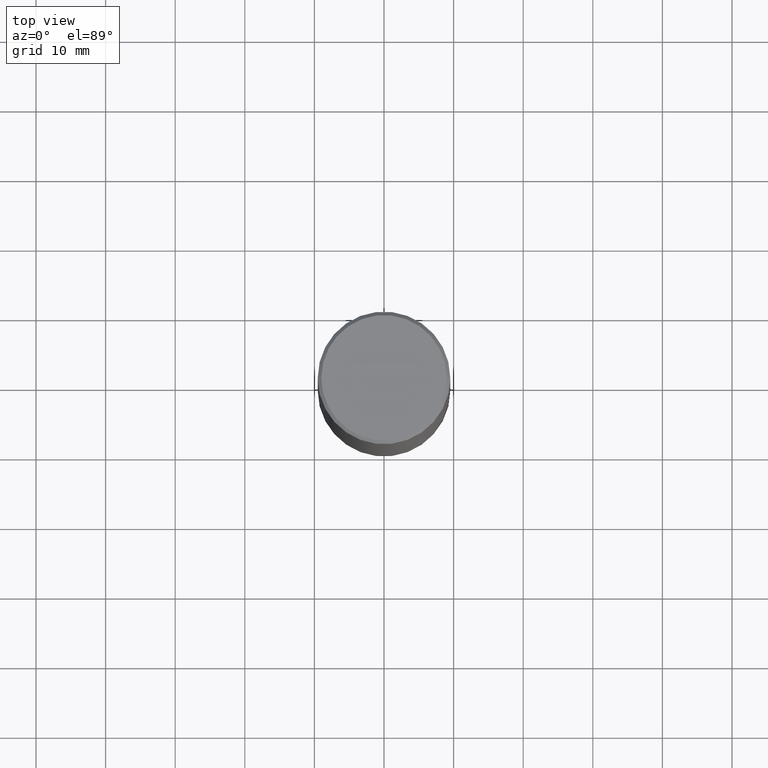
[diagram: clean part render]
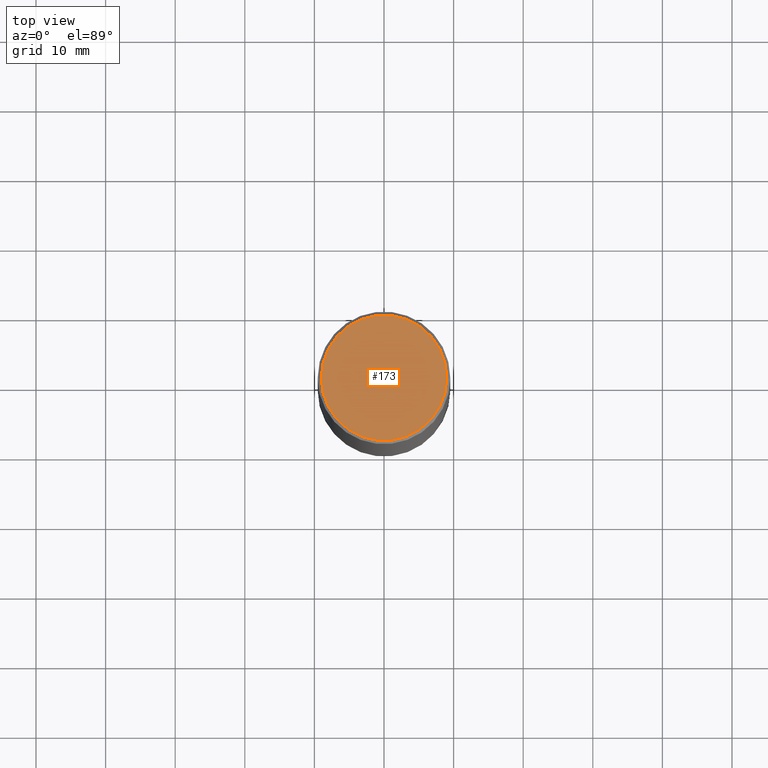
[diagram: same view with one face highlighted and labeled with its STEP entity id]
A machine part, top view. The second image highlights one B-rep face of the part: STEP entity #173.
In plain terms, the highlighted planar face has unit normal (0, -0, -1).
Its self-contained STEP definition (entity closure, byte-faithful):
#49 = CARTESIAN_POINT ( 'NONE',  ( 2.478951750578621842E-15, 0.3549999999999996492, -1.237341619044265047E-15 ) ) ;
#86 = DIRECTION ( 'NONE',  ( 2.438088387897960049E-29, -3.491481338843145188E-15, -1.000000000000000000 ) ) ;
#117 = CARTESIAN_POINT ( 'NONE',  ( -1.043851414335219820E-46, 1.490343170380447200E-32, 4.268512490100411279E-18 ) ) ;
#122 = DIRECTION ( 'NONE',  ( -2.445468806185136597E-29, 3.491481338843145583E-15, 1.000000000000000000 ) ) ;
#124 = CARTESIAN_POINT ( 'NONE',  ( -1.043851414335219820E-46, 1.490343170380447200E-32, 4.268512490100411279E-18 ) ) ;
#148 = CIRCLE ( 'NONE', #309, 0.3549999999999996492 ) ;
#163 = EDGE_LOOP ( 'NONE', ( #225, #389 ) ) ;
#173 = ADVANCED_FACE ( 'NONE', ( #324 ), #327, .F. ) ;
#175 = DIRECTION ( 'NONE',  ( -1.000000000000000000, 6.982962677686265922E-15, -4.876176775795935793E-29 ) ) ;
#225 = ORIENTED_EDGE ( 'NONE', *, *, #353, .T. ) ;
#237 = AXIS2_PLACEMENT_3D ( 'NONE', #49, #86, #175 ) ;
#242 = DIRECTION ( 'NONE',  ( -2.445468806185136597E-29, 3.491481338843145583E-15, 1.000000000000000000 ) ) ;
#245 = DIRECTION ( 'NONE',  ( 1.000000000000000000, -6.982962677686265922E-15, 4.876231632511992667E-29 ) ) ;
#247 = CIRCLE ( 'NONE', #299, 0.3549999999999996492 ) ;
#248 = VERTEX_POINT ( 'NONE', #379 ) ;
#299 = AXIS2_PLACEMENT_3D ( 'NONE', #124, #122, #245 ) ;
#309 = AXIS2_PLACEMENT_3D ( 'NONE', #117, #242, #337 ) ;
#324 = FACE_OUTER_BOUND ( 'NONE', #163, .T. ) ;
#327 = PLANE ( 'NONE',  #237 ) ;
#333 = CARTESIAN_POINT ( 'NONE',  ( 0.3549999999999996492, -2.538996582575038287E-15, 4.268512490117958041E-18 ) ) ;
#337 = DIRECTION ( 'NONE',  ( 1.000000000000000000, -6.982962677686265922E-15, 4.876231632511992667E-29 ) ) ;
#353 = EDGE_CURVE ( 'NONE', #248, #380, #148, .T. ) ;
#368 = EDGE_CURVE ( 'NONE', #380, #248, #247, .T. ) ;
#379 = CARTESIAN_POINT ( 'NONE',  ( -0.3549999999999996492, 2.513866563967053097E-15, 4.268512490082953109E-18 ) ) ;
#380 = VERTEX_POINT ( 'NONE', #333 ) ;
#389 = ORIENTED_EDGE ( 'NONE', *, *, #368, .T. ) ;